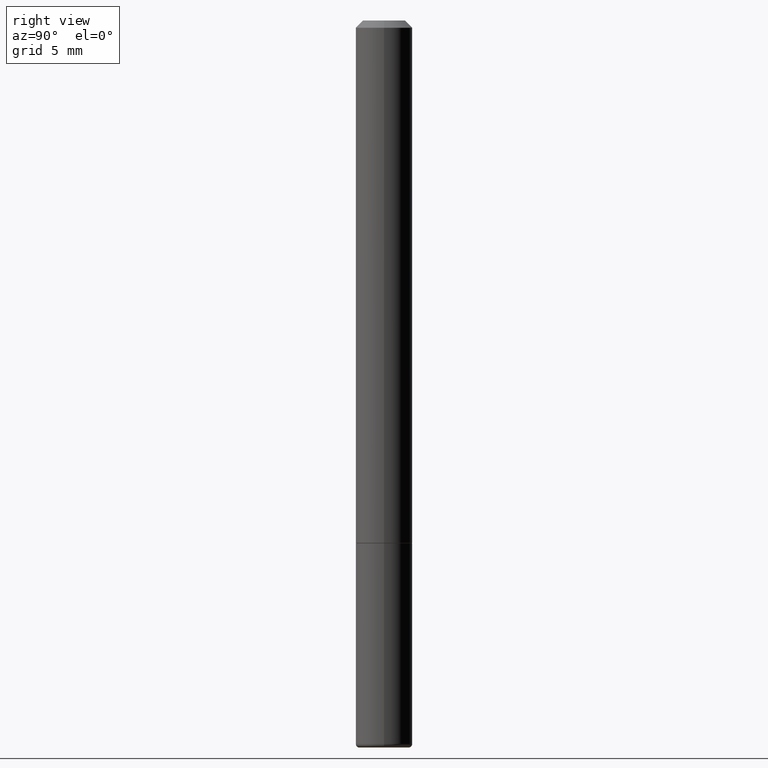
[diagram: clean part render]
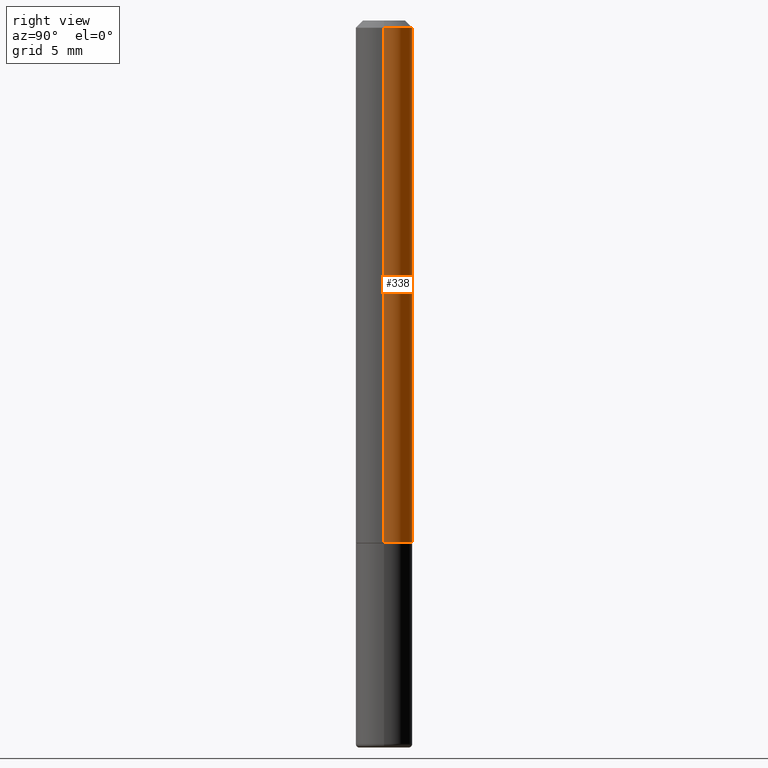
[diagram: same view with one face highlighted and labeled with its STEP entity id]
A machine part, right view. The second image highlights one B-rep face of the part: STEP entity #338.
In plain terms, the highlighted cylindrical surface (edge-blend (fillet) strip) has radius 1.9837 mm, axis along (-0, 0, 1).
Its self-contained STEP definition (entity closure, byte-faithful):
#5 = DIRECTION ( 'NONE',  ( 1.000000000000000000, -6.982962677686266711E-15, 0.000000000000000000 ) ) ;
#40 = CARTESIAN_POINT ( 'NONE',  ( -0.07809999999999980846, 4.755397583504332507E-16, -0.01999999999999999001 ) ) ;
#46 = EDGE_CURVE ( 'NONE', #217, #357, #89, .T. ) ;
#50 = VECTOR ( 'NONE', #227, 39.37007874015748143 ) ;
#51 = AXIS2_PLACEMENT_3D ( 'NONE', #169, #268, #407 ) ;
#59 = DIRECTION ( 'NONE',  ( -2.445468806185136877E-29, 3.491481338843145188E-15, 1.000000000000000000 ) ) ;
#64 = CARTESIAN_POINT ( 'NONE',  ( 4.890937612370270531E-31, -6.982962677686289144E-17, -0.01999999999999999001 ) ) ;
#89 = CIRCLE ( 'NONE', #248, 0.07810000000000000275 ) ;
#92 = CARTESIAN_POINT ( 'NONE',  ( -0.07809999999999991949, 5.549338766286376731E-16, -3.841688305489077071E-30 ) ) ;
#94 = LINE ( 'NONE', #294, #50 ) ;
#96 = CARTESIAN_POINT ( 'NONE',  ( 0.07810000000000000275, -5.562628069044896697E-15, -1.436999999999999833 ) ) ;
#153 = EDGE_CURVE ( 'NONE', #217, #430, #94, .T. ) ;
#157 = EDGE_CURVE ( 'NONE', #430, #348, #164, .T. ) ;
#164 = CIRCLE ( 'NONE', #318, 0.07809999999999980846 ) ;
#169 = CARTESIAN_POINT ( 'NONE',  ( 0.000000000000000000, 0.000000000000000000, 0.000000000000000000 ) ) ;
#171 = CARTESIAN_POINT ( 'NONE',  ( -0.07810000000000000275, -1.988610278718589859E-15, -1.436999999999999833 ) ) ;
#172 = ORIENTED_EDGE ( 'NONE', *, *, #46, .T. ) ;
#193 = DIRECTION ( 'NONE',  ( 1.000000000000000000, -6.982962677686265922E-15, 0.000000000000000000 ) ) ;
#202 = LINE ( 'NONE', #92, #279 ) ;
#207 = DIRECTION ( 'NONE',  ( -2.445468806185136597E-29, 3.491481338843145583E-15, 1.000000000000000000 ) ) ;
#217 = VERTEX_POINT ( 'NONE', #96 ) ;
#227 = DIRECTION ( 'NONE',  ( -2.445468806185136877E-29, 3.491481338843145188E-15, 1.000000000000000000 ) ) ;
#240 = ORIENTED_EDGE ( 'NONE', *, *, #153, .F. ) ;
#241 = ORIENTED_EDGE ( 'NONE', *, *, #379, .T. ) ;
#248 = AXIS2_PLACEMENT_3D ( 'NONE', #305, #207, #5 ) ;
#253 = ORIENTED_EDGE ( 'NONE', *, *, #157, .F. ) ;
#256 = DIRECTION ( 'NONE',  ( -2.445468806185136597E-29, 3.491481338843145583E-15, 1.000000000000000000 ) ) ;
#259 = CARTESIAN_POINT ( 'NONE',  ( 0.07809999999999980846, -6.056345204028181313E-16, -0.01999999999999999001 ) ) ;
#268 = DIRECTION ( 'NONE',  ( -2.445468806185136597E-29, 3.491481338843145583E-15, 1.000000000000000000 ) ) ;
#279 = VECTOR ( 'NONE', #59, 39.37007874015748143 ) ;
#294 = CARTESIAN_POINT ( 'NONE',  ( 0.07809999999999991949, -5.453693851272968448E-16, 3.808294061896621499E-30 ) ) ;
#305 = CARTESIAN_POINT ( 'NONE',  ( 3.514138674488040496E-29, -5.017258683917599261E-15, -1.436999999999999833 ) ) ;
#318 = AXIS2_PLACEMENT_3D ( 'NONE', #64, #256, #193 ) ;
#337 = FACE_OUTER_BOUND ( 'NONE', #415, .T. ) ;
#338 = ADVANCED_FACE ( 'NONE', ( #337 ), #373, .T. ) ;
#348 = VERTEX_POINT ( 'NONE', #40 ) ;
#357 = VERTEX_POINT ( 'NONE', #171 ) ;
#373 = CYLINDRICAL_SURFACE ( 'NONE', #51, 0.07809999999999991949 ) ;
#379 = EDGE_CURVE ( 'NONE', #357, #348, #202, .T. ) ;
#407 = DIRECTION ( 'NONE',  ( 1.000000000000000000, -6.982962677686266711E-15, 4.876176775795935232E-29 ) ) ;
#415 = EDGE_LOOP ( 'NONE', ( #172, #241, #253, #240 ) ) ;
#430 = VERTEX_POINT ( 'NONE', #259 ) ;